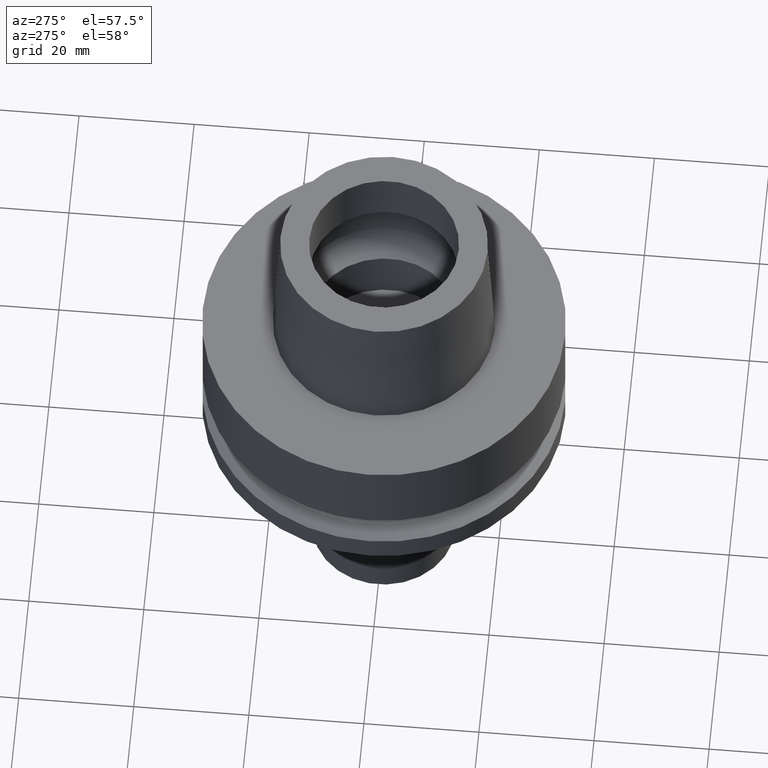
[diagram: clean part render]
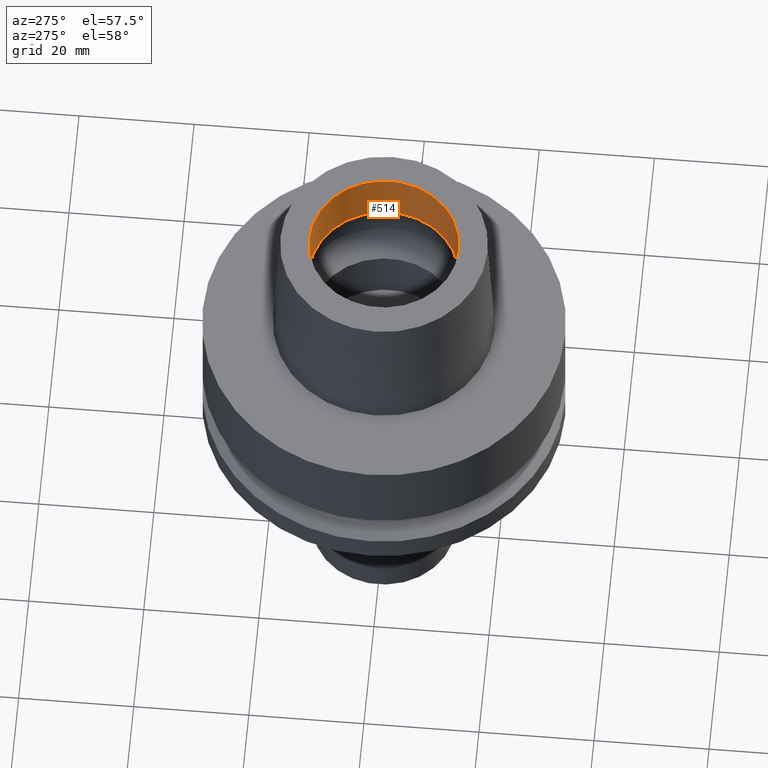
[diagram: same view with one face highlighted and labeled with its STEP entity id]
A machine part, auxiliary view. The second image highlights one B-rep face of the part: STEP entity #514.
In plain terms, the highlighted cylindrical surface (partial cylindrical patch) has radius 13 mm, axis along (0, 0, 1).
Its self-contained STEP definition (entity closure, byte-faithful):
#55 = CARTESIAN_POINT ( 'NONE',  ( 0.0000000000000000000, 0.0000000000000000000, 25.00000000000000000 ) ) ;
#72 = EDGE_LOOP ( 'NONE', ( #1848, #383, #610, #566 ) ) ;
#170 = DIRECTION ( 'NONE',  ( 0.0000000000000000000, 0.0000000000000000000, 1.000000000000000000 ) ) ;
#234 = CARTESIAN_POINT ( 'NONE',  ( 0.0000000000000000000, 0.0000000000000000000, 14.99602540378000093 ) ) ;
#282 = CIRCLE ( 'NONE', #1199, 13.00000000000000000 ) ;
#306 = VERTEX_POINT ( 'NONE', #1680 ) ;
#369 = DIRECTION ( 'NONE',  ( 0.0000000000000000000, -9.659541928455000240E-14, 1.000000000000000000 ) ) ;
#383 = ORIENTED_EDGE ( 'NONE', *, *, #665, .T. ) ;
#458 = DIRECTION ( 'NONE',  ( 0.0000000000000000000, 1.000000000000000000, 0.0000000000000000000 ) ) ;
#495 = DIRECTION ( 'NONE',  ( 0.0000000000000000000, 0.0000000000000000000, 1.000000000000000000 ) ) ;
#514 = ADVANCED_FACE ( 'NONE', ( #1271 ), #1261, .F. ) ;
#549 = VECTOR ( 'NONE', #369, 1000.000000000000000 ) ;
#566 = ORIENTED_EDGE ( 'NONE', *, *, #2500, .F. ) ;
#570 = LINE ( 'NONE', #1869, #549 ) ;
#574 = CARTESIAN_POINT ( 'NONE',  ( 0.0000000000000000000, 0.0000000000000000000, -62.99000000000000199 ) ) ;
#610 = ORIENTED_EDGE ( 'NONE', *, *, #2072, .T. ) ;
#665 = EDGE_CURVE ( 'NONE', #2303, #1679, #2758, .T. ) ;
#689 = AXIS2_PLACEMENT_3D ( 'NONE', #574, #170, #1037 ) ;
#835 = VERTEX_POINT ( 'NONE', #1563 ) ;
#1010 = AXIS2_PLACEMENT_3D ( 'NONE', #55, #495, #2624 ) ;
#1037 = DIRECTION ( 'NONE',  ( 0.0000000000000000000, 1.000000000000000000, 0.0000000000000000000 ) ) ;
#1057 = VECTOR ( 'NONE', #1524, 1000.000000000000000 ) ;
#1186 = CARTESIAN_POINT ( 'NONE',  ( 0.0000000000000000000, -13.00000000000000000, 25.00000000000000000 ) ) ;
#1199 = AXIS2_PLACEMENT_3D ( 'NONE', #234, #1529, #458 ) ;
#1261 = CYLINDRICAL_SURFACE ( 'NONE', #689, 13.00000000000000000 ) ;
#1271 = FACE_OUTER_BOUND ( 'NONE', #72, .T. ) ;
#1524 = DIRECTION ( 'NONE',  ( 0.0000000000000000000, 9.659541928455000240E-14, 1.000000000000000000 ) ) ;
#1529 = DIRECTION ( 'NONE',  ( 0.0000000000000000000, 0.0000000000000000000, -1.000000000000000000 ) ) ;
#1563 = CARTESIAN_POINT ( 'NONE',  ( 0.0000000000000000000, 13.00000000000000000, 25.00000000000000000 ) ) ;
#1585 = CIRCLE ( 'NONE', #1010, 13.00000000000000000 ) ;
#1679 = VERTEX_POINT ( 'NONE', #1186 ) ;
#1680 = CARTESIAN_POINT ( 'NONE',  ( 0.0000000000000000000, 13.00000000000000000, 14.99602540378000093 ) ) ;
#1848 = ORIENTED_EDGE ( 'NONE', *, *, #1949, .T. ) ;
#1869 = CARTESIAN_POINT ( 'NONE',  ( 0.0000000000000000000, 13.00000000000000000, 14.99602540378000093 ) ) ;
#1949 = EDGE_CURVE ( 'NONE', #306, #2303, #282, .T. ) ;
#2007 = CARTESIAN_POINT ( 'NONE',  ( 0.0000000000000000000, -13.00000000000000000, 14.99602540378000093 ) ) ;
#2072 = EDGE_CURVE ( 'NONE', #1679, #835, #1585, .T. ) ;
#2303 = VERTEX_POINT ( 'NONE', #2007 ) ;
#2500 = EDGE_CURVE ( 'NONE', #306, #835, #570, .T. ) ;
#2624 = DIRECTION ( 'NONE',  ( 0.0000000000000000000, -1.000000000000000000, 0.0000000000000000000 ) ) ;
#2758 = LINE ( 'NONE', #2773, #1057 ) ;
#2773 = CARTESIAN_POINT ( 'NONE',  ( 0.0000000000000000000, -13.00000000000000000, 14.99602540378000093 ) ) ;